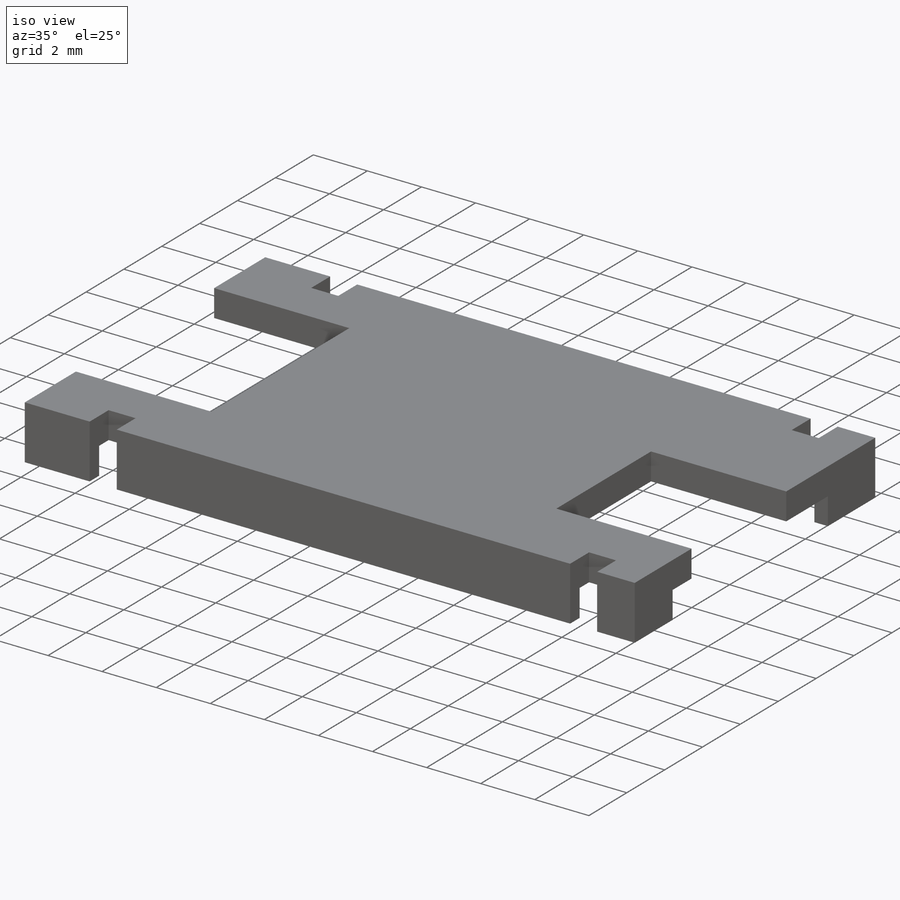
[diagram: iso view]
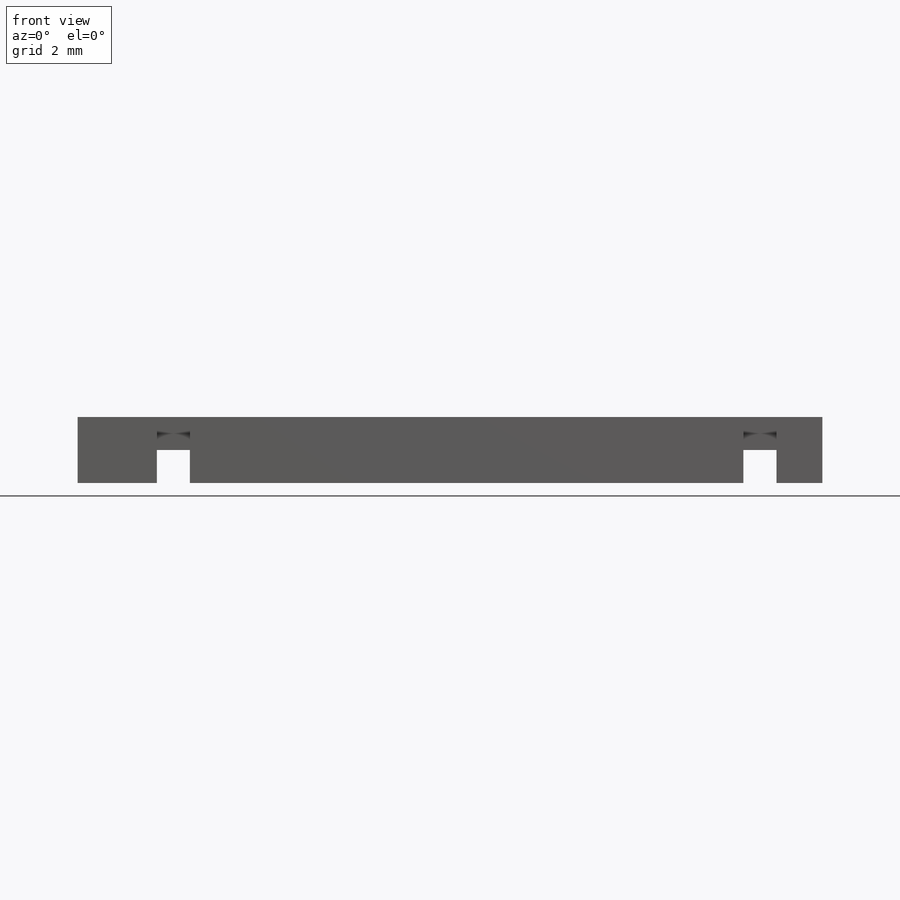
[diagram: front view]
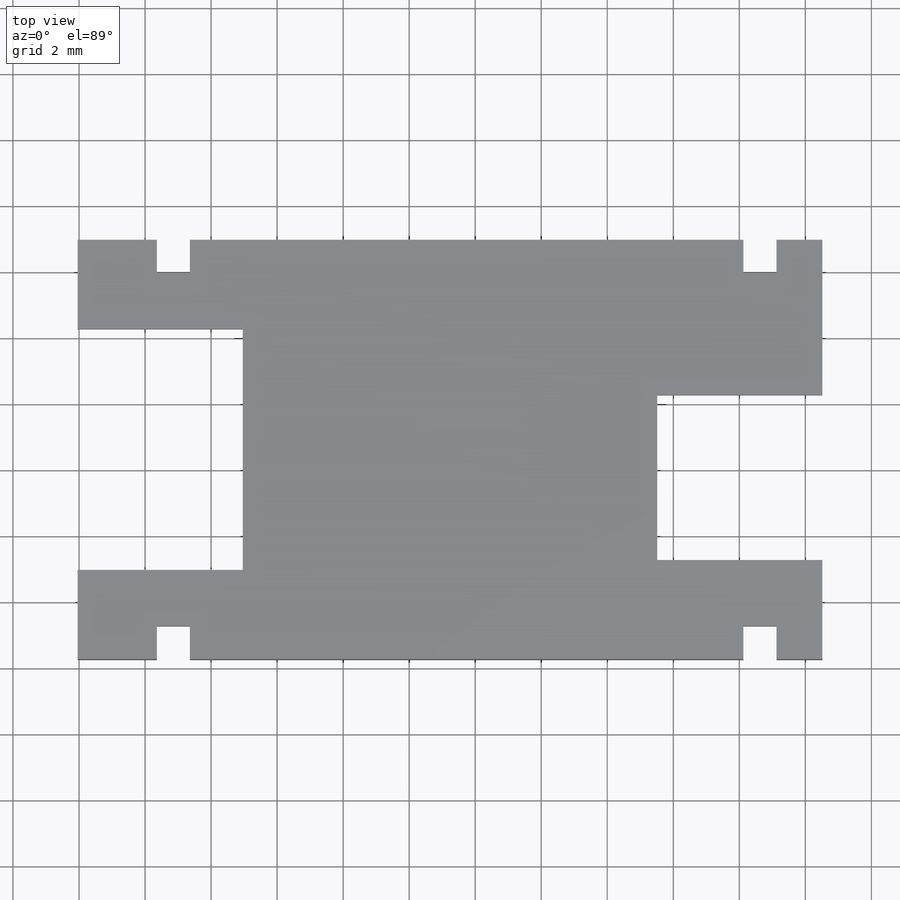
[diagram: top view]
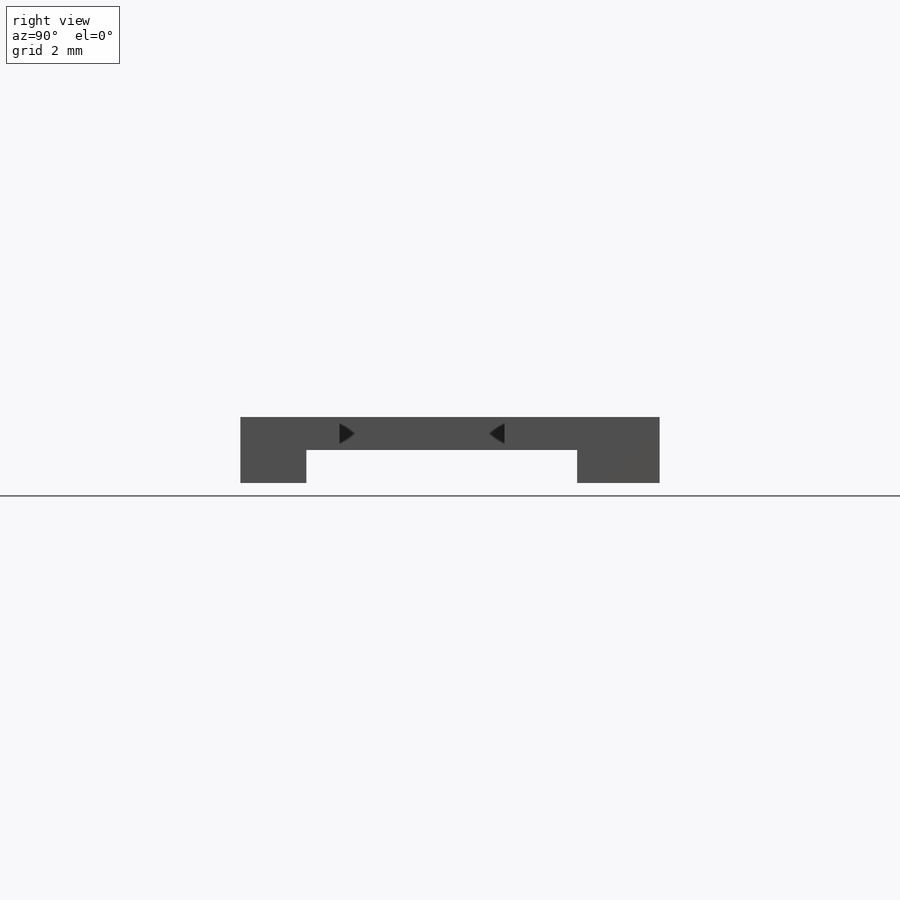
[diagram: right view]
SOLIDWORKS PART (.sldprt)
format: sldprt  version: not decoded by parser v0  size: 283,136 bytes
history: native  units: mm
features: sketch x6, cut_extrude x3, extrude x2, material x1 (+12 scaffold rows collapsed)
feature tree (24):
  scaffold x12  (default folders/planes/origin — collapsed)
  material  "Material <not specified>"
  sketch  "Sketch1"  dims[D1=22.5552mm D2=12.7mm]
  extrude  "Boss-Extrude1"  Depth=1mm
  sketch  "Sketch2"  dims[D1=7.3mm D2=5.0mm D3=2.7mm D4=0.0mm D5=2.75mm]
  cut_extrude  "Cut-Extrude1"  Depth=1mm
  sketch  "Sketch3"  dims[D1=5.0mm D2=3.0mm D3=4.7mm D4=5.0mm]
  cut_extrude  "Cut-Extrude2"  Depth=1mm
  sketch  "Sketch4"  dims[D1=0.5mm D2=0.5mm D3=2.0mm D4=0.5mm D5=2.5mm]
  extrude  "Boss-Extrude2"  Depth=1mm
  sketch  "Sketch7"  dims[D1=1.0mm D2=1.0mm D3=2.4mm D5=1.0mm D6=1.0mm D7=1.39mm D4=2.0 D8=2.0]
  cut_extrude  "Cut-Extrude3"  Depth=3mm
  sketch  "Sketch8"
decode coverage: 10 of 11 modeling features carry decoded parameters
note: suppression state not decoded; provenance and decode notes live in map.json
